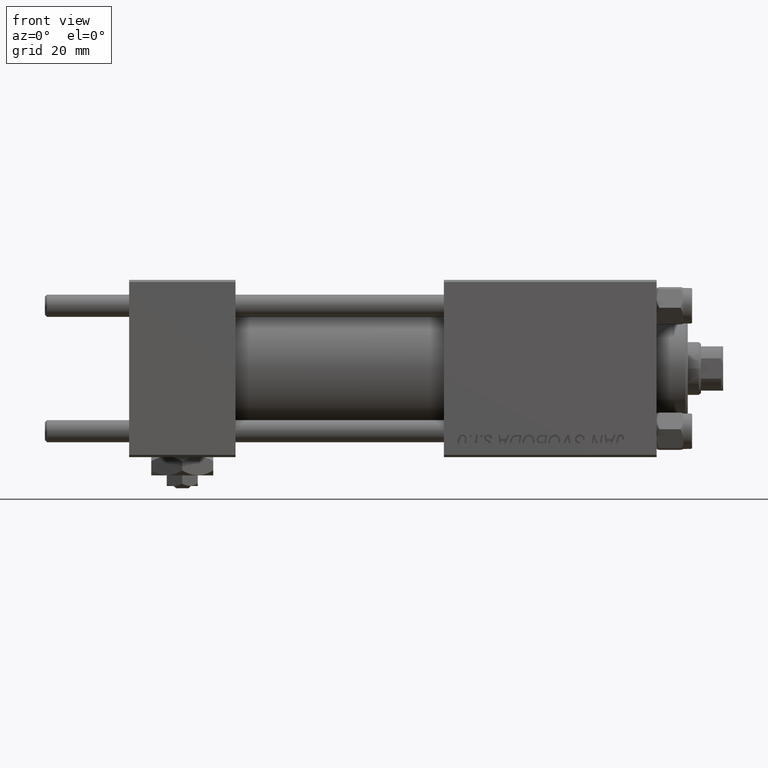
[diagram: clean part render]
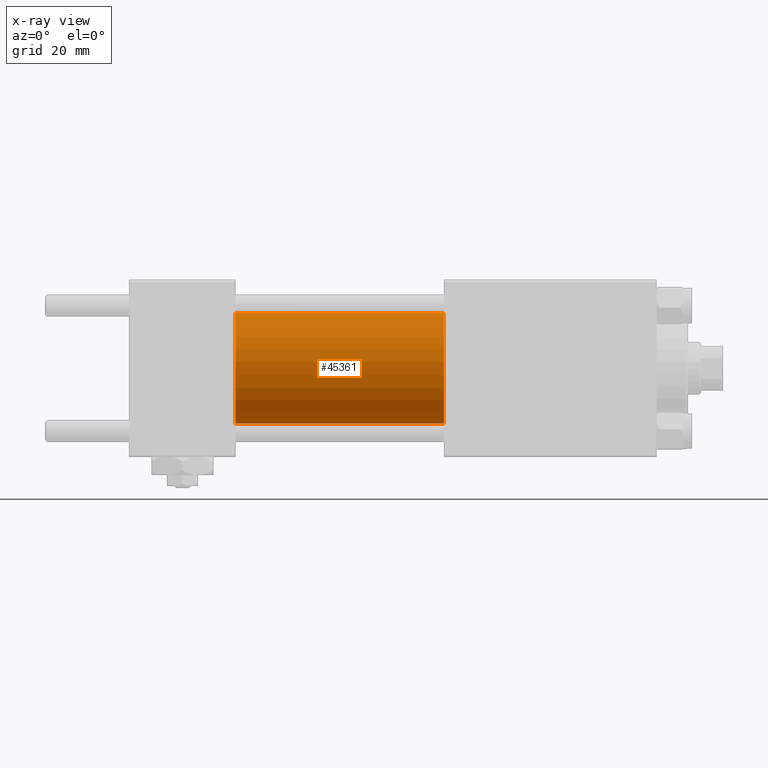
[diagram: x-ray — body ghosted, one internal face saturated and labeled with its STEP entity id]
A machine part, front view, then the same camera in x-ray: the body is ghosted and one INTERNAL B-rep face — a face not visible from any outside direction — is saturated and labeled: STEP entity #45361.
In plain terms, the highlighted cylindrical surface (partial cylindrical patch) has radius 12.5 mm, axis along (-1, -0, -0).
Its self-contained STEP definition (entity closure, byte-faithful):
#42 = CARTESIAN_POINT ( 'NONE',  ( 71.00000000000001421, 0.000000000000000000, 12.49999999999999645 ) ) ;
#7299 = VERTEX_POINT ( 'NONE', #20942 ) ;
#7579 = EDGE_CURVE ( 'NONE', #12319, #7299, #39688, .T. ) ;
#8935 = CARTESIAN_POINT ( 'NONE',  ( 71.00000000000001421, 0.000000000000000000, 12.49999999999999645 ) ) ;
#9015 = CARTESIAN_POINT ( 'NONE',  ( 71.00000000000001421, 0.000000000000000000, 0.000000000000000000 ) ) ;
#11119 = CIRCLE ( 'NONE', #41953, 12.49999999999999645 ) ;
#12319 = VERTEX_POINT ( 'NONE', #20945 ) ;
#12322 = AXIS2_PLACEMENT_3D ( 'NONE', #9015, #29344, #13183 ) ;
#12434 = DIRECTION ( 'NONE',  ( 1.000000000000000000, 0.000000000000000000, 0.000000000000000000 ) ) ;
#13183 = DIRECTION ( 'NONE',  ( 0.000000000000000000, 0.000000000000000000, 1.000000000000000000 ) ) ;
#13684 = FACE_OUTER_BOUND ( 'NONE', #47287, .T. ) ;
#19108 = DIRECTION ( 'NONE',  ( -1.000000000000000000, -0.000000000000000000, -0.000000000000000000 ) ) ;
#19190 = VECTOR ( 'NONE', #48070, 1000.000000000000000 ) ;
#20498 = CARTESIAN_POINT ( 'NONE',  ( 24.00000000000000000, 0.000000000000000000, 0.000000000000000000 ) ) ;
#20886 = DIRECTION ( 'NONE',  ( 1.000000000000000000, 0.000000000000000000, 0.000000000000000000 ) ) ;
#20942 = CARTESIAN_POINT ( 'NONE',  ( 24.00000000000000000, 1.530808498934191127E-15, -12.49999999999999645 ) ) ;
#20945 = CARTESIAN_POINT ( 'NONE',  ( 71.00000000000001421, 1.530808498934191127E-15, -12.49999999999999645 ) ) ;
#21272 = EDGE_CURVE ( 'NONE', #42480, #12319, #11119, .T. ) ;
#23910 = VERTEX_POINT ( 'NONE', #35350 ) ;
#24052 = LINE ( 'NONE', #42, #31330 ) ;
#26405 = EDGE_CURVE ( 'NONE', #23910, #7299, #49645, .T. ) ;
#27123 = AXIS2_PLACEMENT_3D ( 'NONE', #20498, #12434, #28593 ) ;
#28593 = DIRECTION ( 'NONE',  ( 0.000000000000000000, 0.000000000000000000, -1.000000000000000000 ) ) ;
#28732 = CARTESIAN_POINT ( 'NONE',  ( 71.00000000000001421, 0.000000000000000000, 0.000000000000000000 ) ) ;
#29136 = ORIENTED_EDGE ( 'NONE', *, *, #26405, .F. ) ;
#29344 = DIRECTION ( 'NONE',  ( -1.000000000000000000, -0.000000000000000000, -0.000000000000000000 ) ) ;
#31330 = VECTOR ( 'NONE', #19108, 1000.000000000000000 ) ;
#34887 = ORIENTED_EDGE ( 'NONE', *, *, #41262, .F. ) ;
#35350 = CARTESIAN_POINT ( 'NONE',  ( 24.00000000000000000, 0.000000000000000000, 12.49999999999999645 ) ) ;
#39688 = LINE ( 'NONE', #47291, #19190 ) ;
#39995 = ORIENTED_EDGE ( 'NONE', *, *, #21272, .T. ) ;
#41262 = EDGE_CURVE ( 'NONE', #42480, #23910, #24052, .T. ) ;
#41357 = CYLINDRICAL_SURFACE ( 'NONE', #12322, 12.49999999999999645 ) ;
#41953 = AXIS2_PLACEMENT_3D ( 'NONE', #28732, #20886, #45896 ) ;
#42480 = VERTEX_POINT ( 'NONE', #8935 ) ;
#45361 = ADVANCED_FACE ( 'NONE', ( #13684 ), #41357, .F. ) ;
#45896 = DIRECTION ( 'NONE',  ( 0.000000000000000000, 0.000000000000000000, -1.000000000000000000 ) ) ;
#45990 = ORIENTED_EDGE ( 'NONE', *, *, #7579, .T. ) ;
#47287 = EDGE_LOOP ( 'NONE', ( #39995, #45990, #29136, #34887 ) ) ;
#47291 = CARTESIAN_POINT ( 'NONE',  ( 71.00000000000001421, 1.530808498934191127E-15, -12.49999999999999645 ) ) ;
#48070 = DIRECTION ( 'NONE',  ( -1.000000000000000000, -0.000000000000000000, -0.000000000000000000 ) ) ;
#49645 = CIRCLE ( 'NONE', #27123, 12.49999999999999645 ) ;